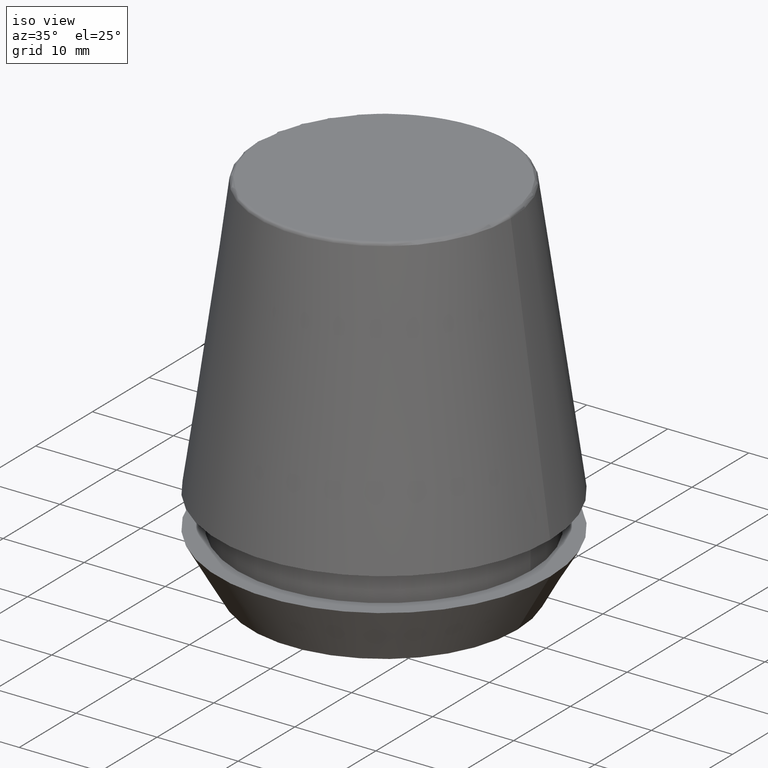
[diagram: clean part render]
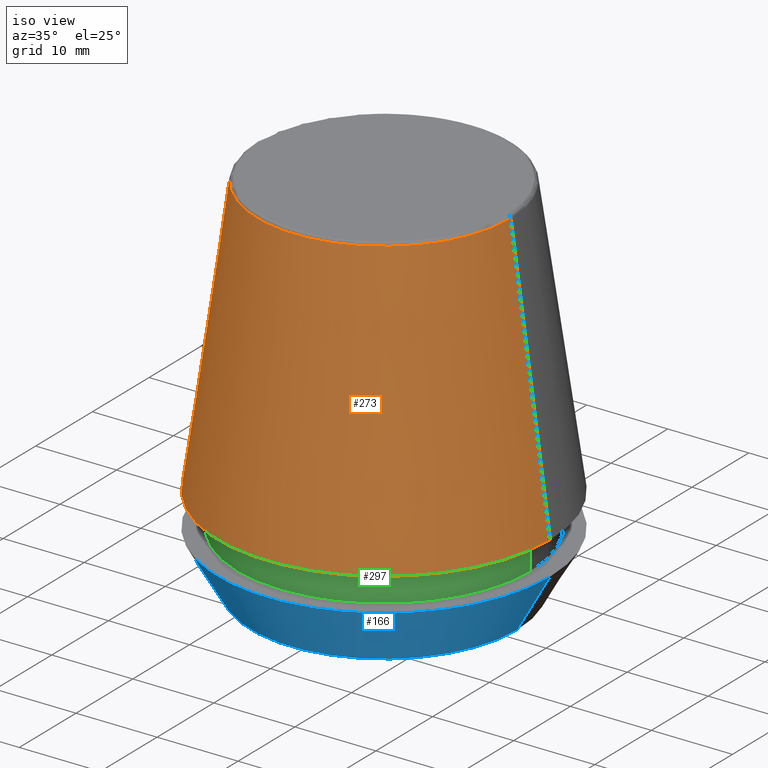
[diagram: same view with three faces highlighted in distinct colors, each labeled with its STEP entity id]
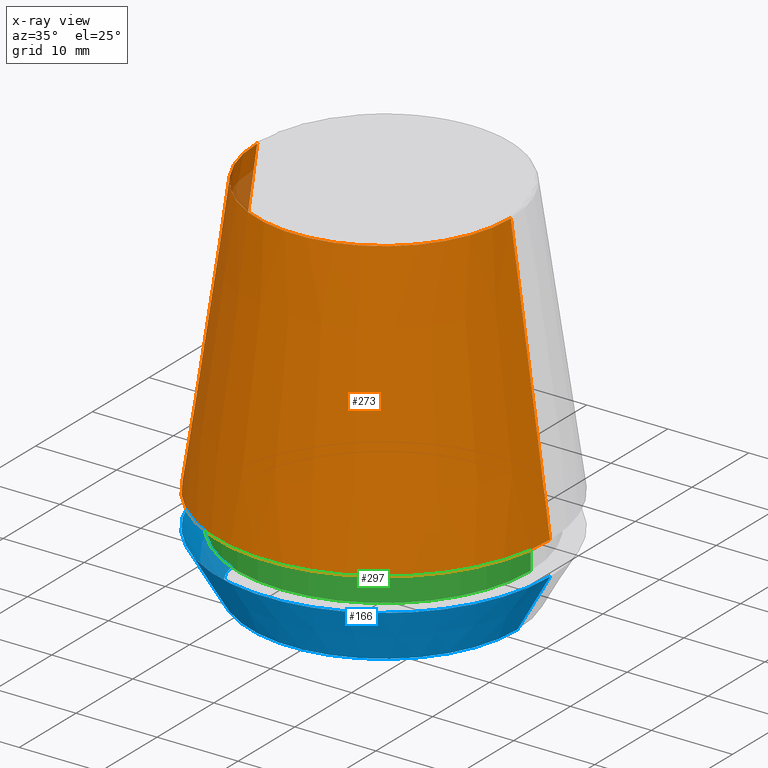
[diagram: x-ray of the same camera — body ghosted, the three highlighted faces saturated]
A machine part, iso view with three faces highlighted in distinct colors.
The next image is the same camera in x-ray (body ghosted, the three faces saturated) — at least one of them is partly hidden behind the body in this view.
Their STEP definitions:

[orange] entity #273 — the highlighted conical surface has half-angle 8 deg.
#8 = CARTESIAN_POINT ( 'NONE',  ( 0.0000000000000000000, 0.0000000000000000000, 45.65566924038402900 ) ) ;
#30 = AXIS2_PLACEMENT_3D ( 'NONE', #142, #316, #113 ) ;
#40 = CARTESIAN_POINT ( 'NONE',  ( 20.50032537154048700, 2.510565784773633700E-015, 11.09999999999999800 ) ) ;
#48 = EDGE_CURVE ( 'NONE', #329, #239, #357, .T. ) ;
#54 = CARTESIAN_POINT ( 'NONE',  ( -20.50032537154048700, 0.0000000000000000000, 11.09999999999999800 ) ) ;
#59 = LINE ( 'NONE', #54, #332 ) ;
#64 = CARTESIAN_POINT ( 'NONE',  ( 15.64384277279740400, 2.213191991290356800E-015, 45.65566924038402900 ) ) ;
#68 = FACE_OUTER_BOUND ( 'NONE', #119, .T. ) ;
#74 = ORIENTED_EDGE ( 'NONE', *, *, #339, .F. ) ;
#96 = EDGE_CURVE ( 'NONE', #112, #329, #59, .T. ) ;
#101 = AXIS2_PLACEMENT_3D ( 'NONE', #8, #257, #190 ) ;
#104 = AXIS2_PLACEMENT_3D ( 'NONE', #128, #219, #303 ) ;
#110 = ORIENTED_EDGE ( 'NONE', *, *, #48, .T. ) ;
#112 = VERTEX_POINT ( 'NONE', #225 ) ;
#113 = DIRECTION ( 'NONE',  ( 1.000000000000000000, 0.0000000000000000000, 0.0000000000000000000 ) ) ;
#115 = LINE ( 'NONE', #236, #122 ) ;
#119 = EDGE_LOOP ( 'NONE', ( #74, #173, #307, #110 ) ) ;
#120 = DIRECTION ( 'NONE',  ( 0.1391731009600587200, 1.704378926181473400E-017, -0.9902680687415712500 ) ) ;
#122 = VECTOR ( 'NONE', #120, 1000.000000000000000 ) ;
#128 = CARTESIAN_POINT ( 'NONE',  ( 0.0000000000000000000, 0.0000000000000000000, 11.09999999999999800 ) ) ;
#142 = CARTESIAN_POINT ( 'NONE',  ( 0.0000000000000000000, 0.0000000000000000000, 11.09999999999999800 ) ) ;
#160 = CONICAL_SURFACE ( 'NONE', #104, 20.50032537154048700, 0.1396263401595396200 ) ;
#173 = ORIENTED_EDGE ( 'NONE', *, *, #270, .F. ) ;
#190 = DIRECTION ( 'NONE',  ( 1.000000000000000000, 0.0000000000000000000, 0.0000000000000000000 ) ) ;
#197 = DIRECTION ( 'NONE',  ( -0.1391731009600587200, 0.0000000000000000000, -0.9902680687415712500 ) ) ;
#219 = DIRECTION ( 'NONE',  ( 0.0000000000000000000, 0.0000000000000000000, -1.000000000000000000 ) ) ;
#225 = CARTESIAN_POINT ( 'NONE',  ( -15.64384277279740400, 0.0000000000000000000, 45.65566924038402900 ) ) ;
#236 = CARTESIAN_POINT ( 'NONE',  ( 20.50032537154048700, 2.510565784773633700E-015, 11.09999999999999800 ) ) ;
#239 = VERTEX_POINT ( 'NONE', #40 ) ;
#257 = DIRECTION ( 'NONE',  ( -0.0000000000000000000, -0.0000000000000000000, 1.000000000000000000 ) ) ;
#270 = EDGE_CURVE ( 'NONE', #112, #366, #277, .T. ) ;
#273 = ADVANCED_FACE ( 'NONE', ( #68 ), #160, .T. ) ;
#277 = CIRCLE ( 'NONE', #101, 15.64384277279740400 ) ;
#303 = DIRECTION ( 'NONE',  ( -1.000000000000000000, 0.0000000000000000000, 0.0000000000000000000 ) ) ;
#307 = ORIENTED_EDGE ( 'NONE', *, *, #96, .T. ) ;
#316 = DIRECTION ( 'NONE',  ( -0.0000000000000000000, -0.0000000000000000000, 1.000000000000000000 ) ) ;
#329 = VERTEX_POINT ( 'NONE', #349 ) ;
#332 = VECTOR ( 'NONE', #197, 1000.000000000000000 ) ;
#339 = EDGE_CURVE ( 'NONE', #366, #239, #115, .T. ) ;
#349 = CARTESIAN_POINT ( 'NONE',  ( -20.50032537154048700, 0.0000000000000000000, 11.09999999999999800 ) ) ;
#357 = CIRCLE ( 'NONE', #30, 20.50032537154048700 ) ;
#366 = VERTEX_POINT ( 'NONE', #64 ) ;

[blue] entity #166 — the highlighted conical surface has half-angle 30 deg.
#1 = VERTEX_POINT ( 'NONE', #348 ) ;
#3 = DIRECTION ( 'NONE',  ( -0.0000000000000000000, -0.0000000000000000000, 1.000000000000000000 ) ) ;
#19 = CARTESIAN_POINT ( 'NONE',  ( 16.45854811567268100, 0.0000000000000000000, 0.0000000000000000000 ) ) ;
#22 = DIRECTION ( 'NONE',  ( -0.0000000000000000000, -0.0000000000000000000, 1.000000000000000000 ) ) ;
#28 = EDGE_CURVE ( 'NONE', #168, #187, #375, .T. ) ;
#35 = LINE ( 'NONE', #341, #209 ) ;
#60 = AXIS2_PLACEMENT_3D ( 'NONE', #148, #22, #285 ) ;
#65 = AXIS2_PLACEMENT_3D ( 'NONE', #212, #3, #336 ) ;
#80 = CARTESIAN_POINT ( 'NONE',  ( -20.50000000000000000, 2.510525938252074100E-015, 7.000000000000006200 ) ) ;
#84 = CARTESIAN_POINT ( 'NONE',  ( -16.45854811567268100, 2.263058382549599700E-015, 0.0000000000000000000 ) ) ;
#95 = DIRECTION ( 'NONE',  ( -0.4999999999999941700, 6.123233995736694500E-017, 0.8660254037844420400 ) ) ;
#99 = ORIENTED_EDGE ( 'NONE', *, *, #207, .T. ) ;
#105 = EDGE_LOOP ( 'NONE', ( #106, #99, #330, #351 ) ) ;
#106 = ORIENTED_EDGE ( 'NONE', *, *, #28, .F. ) ;
#111 = DIRECTION ( 'NONE',  ( -0.0000000000000000000, -0.0000000000000000000, 1.000000000000000000 ) ) ;
#127 = VERTEX_POINT ( 'NONE', #19 ) ;
#131 = VECTOR ( 'NONE', #95, 1000.000000000000000 ) ;
#135 = CIRCLE ( 'NONE', #60, 20.50000000000000000 ) ;
#138 = DIRECTION ( 'NONE',  ( 0.4999999999999941700, 0.0000000000000000000, 0.8660254037844420400 ) ) ;
#143 = CARTESIAN_POINT ( 'NONE',  ( -16.45854811567268100, 2.015590826847124800E-015, 0.0000000000000000000 ) ) ;
#148 = CARTESIAN_POINT ( 'NONE',  ( 0.0000000000000000000, 0.0000000000000000000, 7.000000000000006200 ) ) ;
#165 = DIRECTION ( 'NONE',  ( 1.000000000000000000, 0.0000000000000000000, 0.0000000000000000000 ) ) ;
#166 = ADVANCED_FACE ( 'NONE', ( #189 ), #328, .T. ) ;
#168 = VERTEX_POINT ( 'NONE', #84 ) ;
#185 = EDGE_CURVE ( 'NONE', #127, #1, #35, .T. ) ;
#187 = VERTEX_POINT ( 'NONE', #80 ) ;
#189 = FACE_OUTER_BOUND ( 'NONE', #105, .T. ) ;
#207 = EDGE_CURVE ( 'NONE', #168, #127, #284, .T. ) ;
#209 = VECTOR ( 'NONE', #138, 1000.000000000000000 ) ;
#212 = CARTESIAN_POINT ( 'NONE',  ( 0.0000000000000000000, 0.0000000000000000000, 0.0000000000000000000 ) ) ;
#280 = AXIS2_PLACEMENT_3D ( 'NONE', #342, #111, #165 ) ;
#284 = CIRCLE ( 'NONE', #65, 16.45854811567268100 ) ;
#285 = DIRECTION ( 'NONE',  ( 1.000000000000000000, 0.0000000000000000000, 0.0000000000000000000 ) ) ;
#328 = CONICAL_SURFACE ( 'NONE', #280, 16.45854811567268100, 0.5235987755982921500 ) ;
#330 = ORIENTED_EDGE ( 'NONE', *, *, #185, .T. ) ;
#336 = DIRECTION ( 'NONE',  ( 1.000000000000000000, 0.0000000000000000000, 0.0000000000000000000 ) ) ;
#341 = CARTESIAN_POINT ( 'NONE',  ( 16.45854811567268100, 0.0000000000000000000, 0.0000000000000000000 ) ) ;
#342 = CARTESIAN_POINT ( 'NONE',  ( 0.0000000000000000000, 0.0000000000000000000, 0.0000000000000000000 ) ) ;
#348 = CARTESIAN_POINT ( 'NONE',  ( 20.50000000000000000, 0.0000000000000000000, 7.000000000000006200 ) ) ;
#351 = ORIENTED_EDGE ( 'NONE', *, *, #371, .F. ) ;
#371 = EDGE_CURVE ( 'NONE', #187, #1, #135, .T. ) ;
#375 = LINE ( 'NONE', #143, #131 ) ;

[green] entity #297 — the highlighted cylindrical surface (partial cylindrical patch) has radius 18.1 mm, axis along (-0, -0, 1).
#5 = CARTESIAN_POINT ( 'NONE',  ( 0.0000000000000000000, 0.0000000000000000000, 46.00000000000000000 ) ) ;
#13 = CARTESIAN_POINT ( 'NONE',  ( 0.0000000000000000000, 0.0000000000000000000, 11.09999999999999800 ) ) ;
#14 = CARTESIAN_POINT ( 'NONE',  ( 18.10000000000000500, 0.0000000000000000000, 11.09999999999999800 ) ) ;
#15 = DIRECTION ( 'NONE',  ( -0.0000000000000000000, -0.0000000000000000000, 1.000000000000000000 ) ) ;
#20 = EDGE_LOOP ( 'NONE', ( #132, #333, #378, #45 ) ) ;
#21 = CARTESIAN_POINT ( 'NONE',  ( -18.10000000000000100, 2.216610706456709600E-015, 6.999999999999999100 ) ) ;
#42 = DIRECTION ( 'NONE',  ( 1.000000000000000000, 0.0000000000000000000, 0.0000000000000000000 ) ) ;
#45 = ORIENTED_EDGE ( 'NONE', *, *, #221, .F. ) ;
#46 = CARTESIAN_POINT ( 'NONE',  ( 18.10000000000000500, 0.0000000000000000000, 46.00000000000000000 ) ) ;
#63 = VERTEX_POINT ( 'NONE', #21 ) ;
#83 = AXIS2_PLACEMENT_3D ( 'NONE', #13, #288, #306 ) ;
#97 = LINE ( 'NONE', #195, #252 ) ;
#102 = FACE_OUTER_BOUND ( 'NONE', #20, .T. ) ;
#107 = DIRECTION ( 'NONE',  ( -0.0000000000000000000, -0.0000000000000000000, 1.000000000000000000 ) ) ;
#108 = DIRECTION ( 'NONE',  ( 1.000000000000000000, 0.0000000000000000000, 0.0000000000000000000 ) ) ;
#116 = CIRCLE ( 'NONE', #83, 18.10000000000000500 ) ;
#132 = ORIENTED_EDGE ( 'NONE', *, *, #188, .F. ) ;
#134 = LINE ( 'NONE', #46, #350 ) ;
#137 = CARTESIAN_POINT ( 'NONE',  ( 0.0000000000000000000, 0.0000000000000000000, 6.999999999999999100 ) ) ;
#147 = AXIS2_PLACEMENT_3D ( 'NONE', #5, #107, #42 ) ;
#153 = VERTEX_POINT ( 'NONE', #373 ) ;
#155 = AXIS2_PLACEMENT_3D ( 'NONE', #137, #311, #108 ) ;
#164 = CIRCLE ( 'NONE', #155, 18.10000000000000100 ) ;
#188 = EDGE_CURVE ( 'NONE', #63, #153, #97, .T. ) ;
#193 = EDGE_CURVE ( 'NONE', #63, #298, #164, .T. ) ;
#195 = CARTESIAN_POINT ( 'NONE',  ( -18.10000000000000500, 2.216610706456710000E-015, 46.00000000000000000 ) ) ;
#216 = VERTEX_POINT ( 'NONE', #14 ) ;
#221 = EDGE_CURVE ( 'NONE', #153, #216, #116, .T. ) ;
#242 = CYLINDRICAL_SURFACE ( 'NONE', #147, 18.10000000000000500 ) ;
#252 = VECTOR ( 'NONE', #15, 1000.000000000000000 ) ;
#288 = DIRECTION ( 'NONE',  ( -0.0000000000000000000, -0.0000000000000000000, 1.000000000000000000 ) ) ;
#297 = ADVANCED_FACE ( 'NONE', ( #102 ), #242, .T. ) ;
#298 = VERTEX_POINT ( 'NONE', #305 ) ;
#305 = CARTESIAN_POINT ( 'NONE',  ( 18.10000000000000100, 0.0000000000000000000, 6.999999999999999100 ) ) ;
#306 = DIRECTION ( 'NONE',  ( 1.000000000000000000, 0.0000000000000000000, 0.0000000000000000000 ) ) ;
#311 = DIRECTION ( 'NONE',  ( -0.0000000000000000000, -0.0000000000000000000, 1.000000000000000000 ) ) ;
#333 = ORIENTED_EDGE ( 'NONE', *, *, #193, .T. ) ;
#350 = VECTOR ( 'NONE', #354, 1000.000000000000000 ) ;
#354 = DIRECTION ( 'NONE',  ( -0.0000000000000000000, -0.0000000000000000000, 1.000000000000000000 ) ) ;
#363 = EDGE_CURVE ( 'NONE', #298, #216, #134, .T. ) ;
#373 = CARTESIAN_POINT ( 'NONE',  ( -18.10000000000000500, 2.216610706456710000E-015, 11.09999999999999800 ) ) ;
#378 = ORIENTED_EDGE ( 'NONE', *, *, #363, .T. ) ;